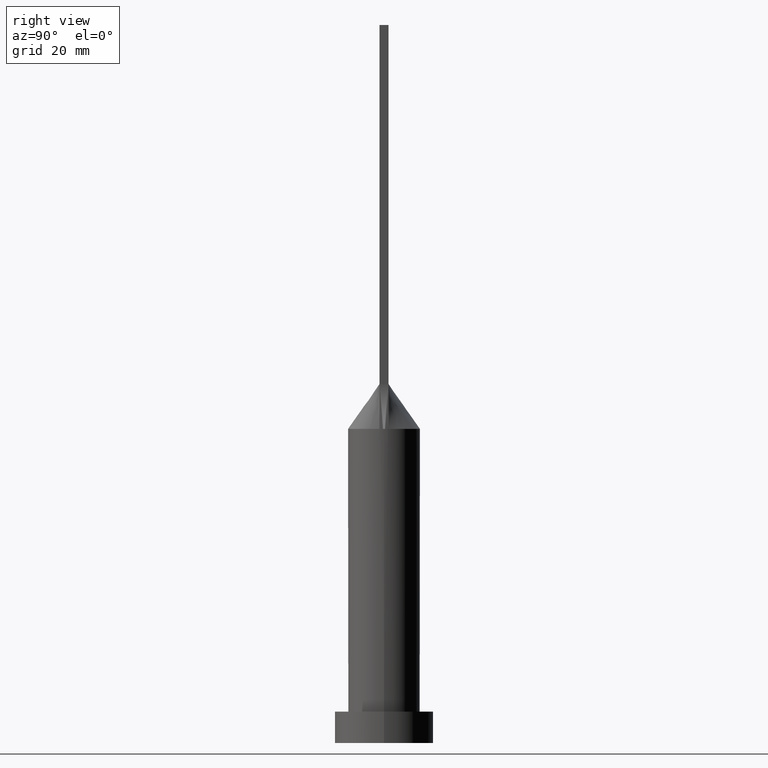
[diagram: clean part render]
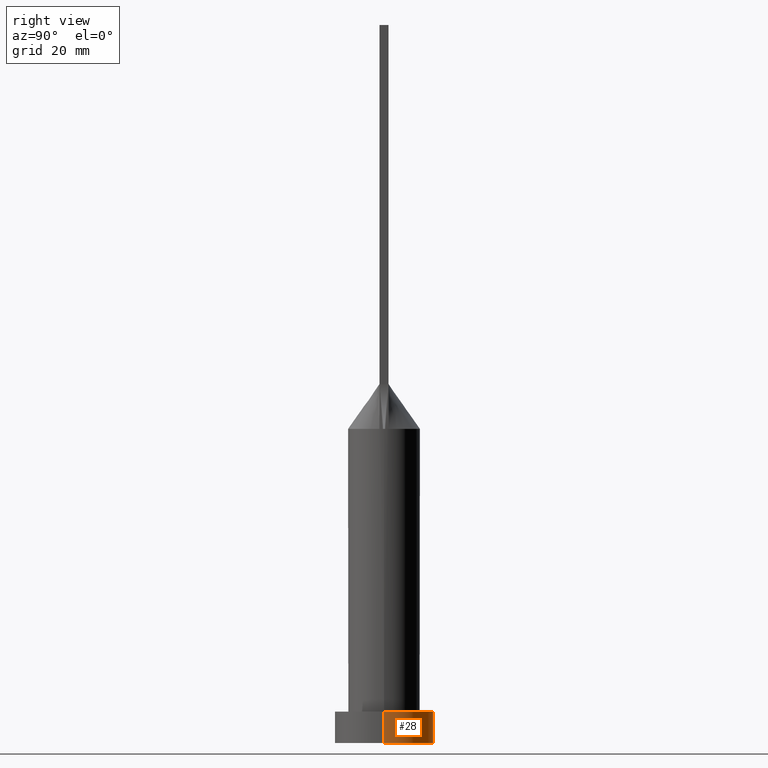
[diagram: same view with one face highlighted and labeled with its STEP entity id]
A machine part, right view. The second image highlights one B-rep face of the part: STEP entity #28.
In plain terms, the highlighted cylindrical surface (partial cylindrical patch) has radius 11 mm, axis along (-0, -0, -1).
Its self-contained STEP definition (entity closure, byte-faithful):
#14 = DIRECTION ( 'NONE',  ( -1.000000000000000000, 0.000000000000000000, 0.000000000000000000 ) ) ;
#21 = CARTESIAN_POINT ( 'NONE',  ( -11.00000000000000000, 0.000000000000000000, 7.000000000000000000 ) ) ;
#26 = CYLINDRICAL_SURFACE ( 'NONE', #80, 11.00000000000000000 ) ;
#28 = ADVANCED_FACE ( 'NONE', ( #488 ), #26, .T. ) ;
#38 = DIRECTION ( 'NONE',  ( -0.000000000000000000, -0.000000000000000000, -1.000000000000000000 ) ) ;
#46 = ORIENTED_EDGE ( 'NONE', *, *, #400, .T. ) ;
#64 = CIRCLE ( 'NONE', #84, 11.00000000000000000 ) ;
#80 = AXIS2_PLACEMENT_3D ( 'NONE', #377, #173, #14 ) ;
#84 = AXIS2_PLACEMENT_3D ( 'NONE', #189, #533, #632 ) ;
#123 = CARTESIAN_POINT ( 'NONE',  ( -11.00000000000000000, 0.000000000000000000, 0.000000000000000000 ) ) ;
#127 = DIRECTION ( 'NONE',  ( -0.000000000000000000, -0.000000000000000000, -1.000000000000000000 ) ) ;
#142 = DIRECTION ( 'NONE',  ( 1.000000000000000000, 0.000000000000000000, 0.000000000000000000 ) ) ;
#163 = VERTEX_POINT ( 'NONE', #199 ) ;
#172 = CARTESIAN_POINT ( 'NONE',  ( -11.00000000000000000, 0.000000000000000000, 7.000000000000000000 ) ) ;
#173 = DIRECTION ( 'NONE',  ( -0.000000000000000000, -0.000000000000000000, -1.000000000000000000 ) ) ;
#189 = CARTESIAN_POINT ( 'NONE',  ( 0.000000000000000000, 0.000000000000000000, 7.000000000000000000 ) ) ;
#199 = CARTESIAN_POINT ( 'NONE',  ( 11.00000000000000000, 1.347111479062088405E-15, 7.000000000000000000 ) ) ;
#303 = EDGE_LOOP ( 'NONE', ( #463, #321, #46, #588 ) ) ;
#304 = AXIS2_PLACEMENT_3D ( 'NONE', #477, #483, #142 ) ;
#307 = EDGE_CURVE ( 'NONE', #163, #536, #64, .T. ) ;
#321 = ORIENTED_EDGE ( 'NONE', *, *, #631, .T. ) ;
#375 = LINE ( 'NONE', #172, #572 ) ;
#377 = CARTESIAN_POINT ( 'NONE',  ( 0.000000000000000000, 0.000000000000000000, 7.000000000000000000 ) ) ;
#400 = EDGE_CURVE ( 'NONE', #552, #557, #532, .T. ) ;
#463 = ORIENTED_EDGE ( 'NONE', *, *, #307, .F. ) ;
#466 = VECTOR ( 'NONE', #38, 1000.000000000000000 ) ;
#477 = CARTESIAN_POINT ( 'NONE',  ( 0.000000000000000000, 0.000000000000000000, 0.000000000000000000 ) ) ;
#483 = DIRECTION ( 'NONE',  ( 0.000000000000000000, 0.000000000000000000, 1.000000000000000000 ) ) ;
#488 = FACE_OUTER_BOUND ( 'NONE', #303, .T. ) ;
#532 = CIRCLE ( 'NONE', #304, 11.00000000000000000 ) ;
#533 = DIRECTION ( 'NONE',  ( 0.000000000000000000, 0.000000000000000000, 1.000000000000000000 ) ) ;
#536 = VERTEX_POINT ( 'NONE', #21 ) ;
#552 = VERTEX_POINT ( 'NONE', #564 ) ;
#557 = VERTEX_POINT ( 'NONE', #123 ) ;
#564 = CARTESIAN_POINT ( 'NONE',  ( 11.00000000000000000, 1.347111479062088405E-15, 0.000000000000000000 ) ) ;
#572 = VECTOR ( 'NONE', #127, 1000.000000000000000 ) ;
#574 = EDGE_CURVE ( 'NONE', #536, #557, #375, .T. ) ;
#578 = CARTESIAN_POINT ( 'NONE',  ( 11.00000000000000000, 1.347111479062088405E-15, 7.000000000000000000 ) ) ;
#588 = ORIENTED_EDGE ( 'NONE', *, *, #574, .F. ) ;
#631 = EDGE_CURVE ( 'NONE', #163, #552, #633, .T. ) ;
#632 = DIRECTION ( 'NONE',  ( 1.000000000000000000, 0.000000000000000000, 0.000000000000000000 ) ) ;
#633 = LINE ( 'NONE', #578, #466 ) ;